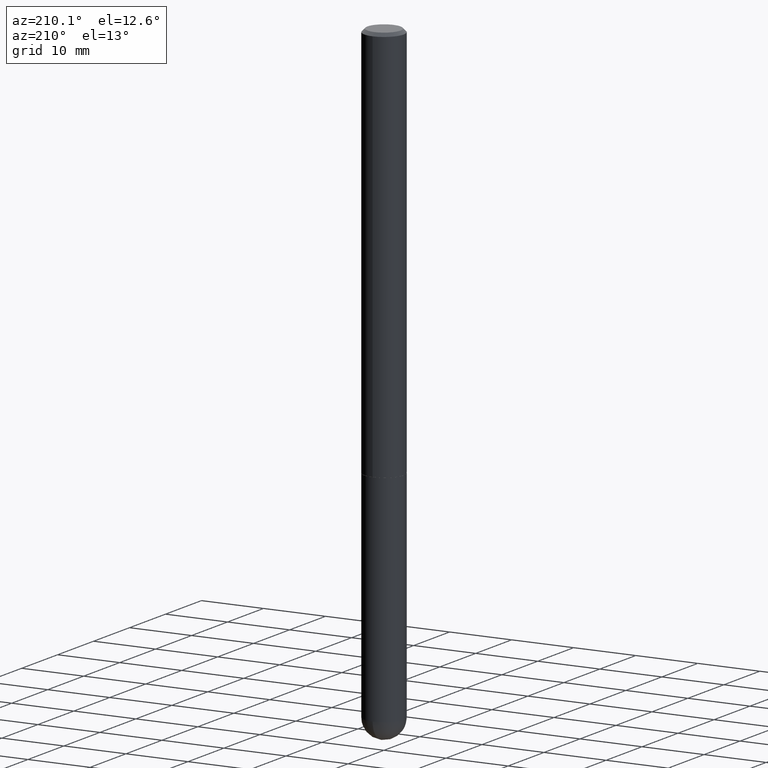
[diagram: clean part render]
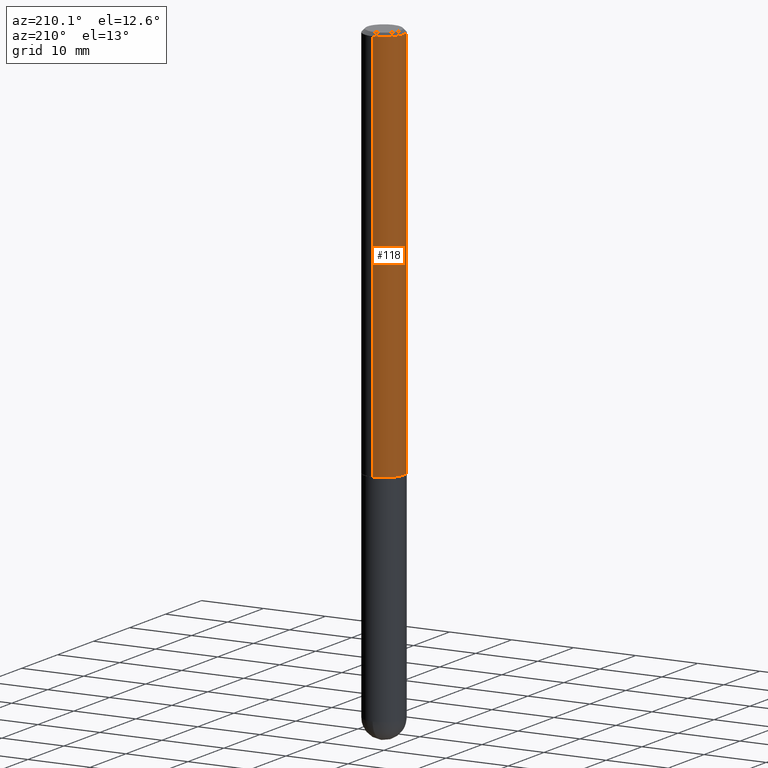
[diagram: same view with one face highlighted and labeled with its STEP entity id]
A machine part, auxiliary view. The second image highlights one B-rep face of the part: STEP entity #118.
In plain terms, the highlighted cylindrical surface (edge-blend (fillet) strip) has radius 3.175 mm, axis along (-0, 0, 1).
Its self-contained STEP definition (entity closure, byte-faithful):
#5 = DIRECTION ( 'NONE',  ( -2.445539602499712119E-29, 3.491379954491197687E-15, 1.000000000000000000 ) ) ;
#48 = ORIENTED_EDGE ( 'NONE', *, *, #396, .T. ) ;
#80 = DIRECTION ( 'NONE',  ( -2.445539602499712119E-29, 3.491379954491197687E-15, 1.000000000000000000 ) ) ;
#83 = ORIENTED_EDGE ( 'NONE', *, *, #308, .F. ) ;
#99 = CARTESIAN_POINT ( 'NONE',  ( 8.881784197001575756E-16, 0.1249999999999915623, -2.499000000000000998 ) ) ;
#111 = DIRECTION ( 'NONE',  ( -6.982962677686265922E-15, -1.000000000000000000, 3.483106191921934765E-15 ) ) ;
#112 = CARTESIAN_POINT ( 'NONE',  ( -8.575622497214411495E-16, -0.1250000000000001110, -0.01999999999999959102 ) ) ;
#116 = CARTESIAN_POINT ( 'NONE',  ( -8.728703347107844235E-16, -0.1250000000000001665, 4.364224943114003025E-16 ) ) ;
#118 = ADVANCED_FACE ( 'NONE', ( #252 ), #164, .T. ) ;
#119 = EDGE_LOOP ( 'NONE', ( #83, #326, #48, #357 ) ) ;
#122 = VECTOR ( 'NONE', #386, 39.37007874015748143 ) ;
#150 = LINE ( 'NONE', #116, #122 ) ;
#154 = VECTOR ( 'NONE', #80, 39.37007874015748143 ) ;
#156 = VERTEX_POINT ( 'NONE', #99 ) ;
#164 = CYLINDRICAL_SURFACE ( 'NONE', #389, 0.1250000000000001665 ) ;
#173 = CARTESIAN_POINT ( 'NONE',  ( 4.891079204999430334E-31, -6.982759908982402769E-17, -0.02000000000000002470 ) ) ;
#178 = DIRECTION ( 'NONE',  ( -6.982962677686265922E-15, -1.000000000000000000, 4.370956789862810105E-15 ) ) ;
#199 = CARTESIAN_POINT ( 'NONE',  ( 6.111403466646780702E-29, -8.724958506273503079E-15, -2.499000000000000110 ) ) ;
#203 = CARTESIAN_POINT ( 'NONE',  ( 8.728703347107839305E-16, 0.1249999999999999584, -0.02000000000000046185 ) ) ;
#213 = CARTESIAN_POINT ( 'NONE',  ( -8.728703347107242729E-16, -0.1250000000000090206, -2.498999999999999666 ) ) ;
#252 = FACE_OUTER_BOUND ( 'NONE', #119, .T. ) ;
#253 = LINE ( 'NONE', #295, #154 ) ;
#273 = DIRECTION ( 'NONE',  ( -2.445539602499712119E-29, 3.491379954491197687E-15, 1.000000000000000000 ) ) ;
#278 = VERTEX_POINT ( 'NONE', #203 ) ;
#293 = CIRCLE ( 'NONE', #336, 0.1250000000000000278 ) ;
#294 = EDGE_CURVE ( 'NONE', #278, #388, #293, .T. ) ;
#295 = CARTESIAN_POINT ( 'NONE',  ( 8.881784197001262184E-16, 0.1250000000000001665, -4.364224943114003025E-16 ) ) ;
#308 = EDGE_CURVE ( 'NONE', #156, #278, #253, .T. ) ;
#317 = EDGE_CURVE ( 'NONE', #156, #355, #318, .T. ) ;
#318 = CIRCLE ( 'NONE', #343, 0.1250000000000003053 ) ;
#326 = ORIENTED_EDGE ( 'NONE', *, *, #317, .T. ) ;
#336 = AXIS2_PLACEMENT_3D ( 'NONE', #173, #273, #111 ) ;
#343 = AXIS2_PLACEMENT_3D ( 'NONE', #199, #398, #178 ) ;
#354 = DIRECTION ( 'NONE',  ( -6.982962677686265922E-15, -1.000000000000000000, 3.491379954491197687E-15 ) ) ;
#355 = VERTEX_POINT ( 'NONE', #213 ) ;
#357 = ORIENTED_EDGE ( 'NONE', *, *, #294, .F. ) ;
#386 = DIRECTION ( 'NONE',  ( -2.445539602499712119E-29, 3.491379954491197687E-15, 1.000000000000000000 ) ) ;
#388 = VERTEX_POINT ( 'NONE', #112 ) ;
#389 = AXIS2_PLACEMENT_3D ( 'NONE', #390, #5, #354 ) ;
#390 = CARTESIAN_POINT ( 'NONE',  ( 0.000000000000000000, 0.000000000000000000, 0.000000000000000000 ) ) ;
#396 = EDGE_CURVE ( 'NONE', #355, #388, #150, .T. ) ;
#398 = DIRECTION ( 'NONE',  ( -2.445539602499712119E-29, 3.491379954491197687E-15, 1.000000000000000000 ) ) ;